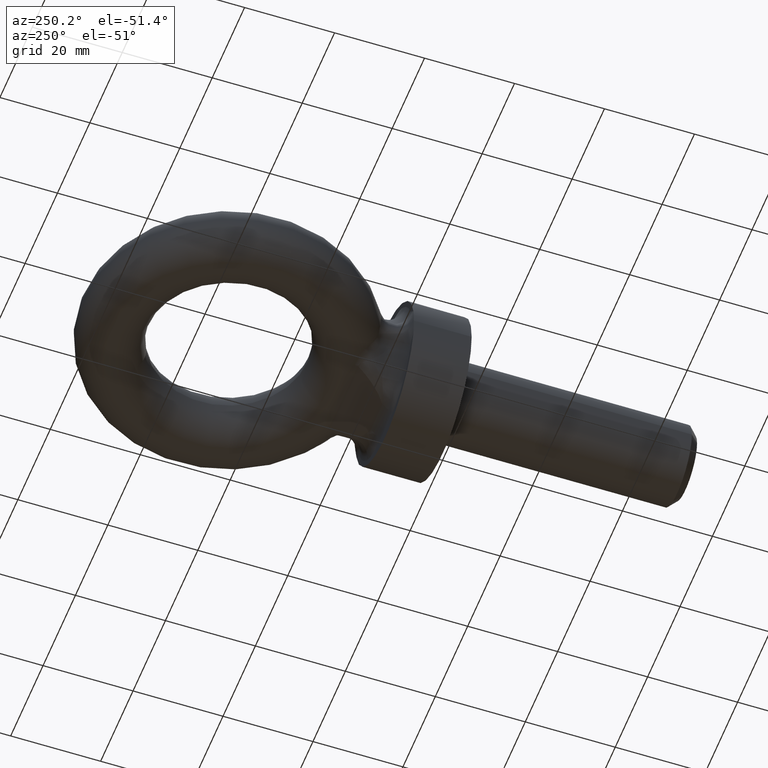
[diagram: clean part render]
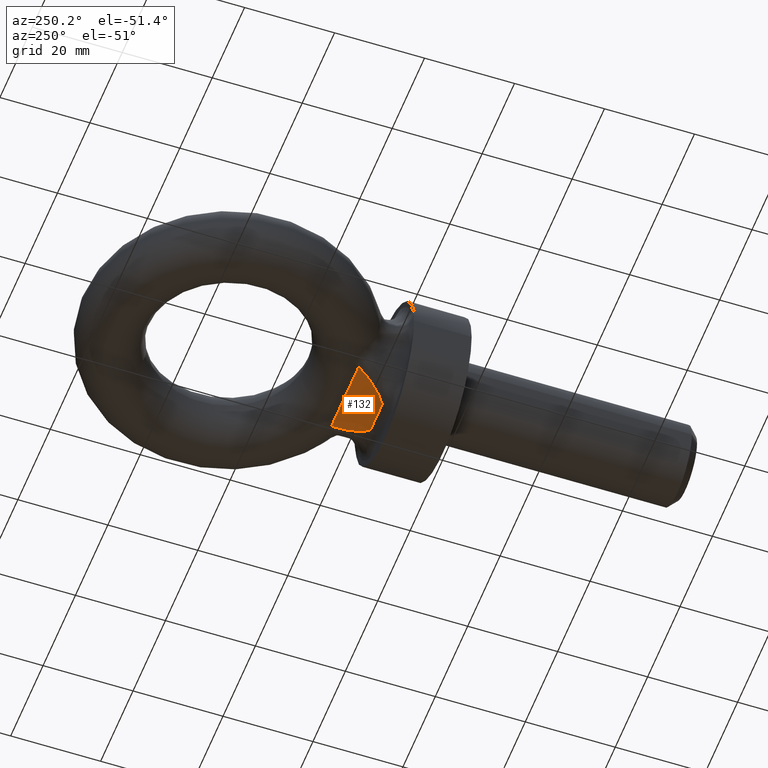
[diagram: same view with one face highlighted and labeled with its STEP entity id]
A machine part, auxiliary view. The second image highlights one B-rep face of the part: STEP entity #132.
In plain terms, the highlighted planar face has unit normal (0, 0.4932, -0.8699).
Its self-contained STEP definition (entity closure, byte-faithful):
#102=ELLIPSE('',#694,20.2741540468166,10.);
#103=ELLIPSE('',#695,20.2741540468166,10.);
#132=ADVANCED_FACE('',(#182),#170,.T.);
#170=PLANE('',#696);
#182=FACE_OUTER_BOUND('',#222,.T.);
#222=EDGE_LOOP('',(#338,#339,#340,#341));
#264=LINE('',#1026,#268);
#268=VECTOR('',#797,1.);
#281=B_SPLINE_CURVE_WITH_KNOTS('',3,(#1030,#1031,#1032,#1033,#1034,#1035),
 .UNSPECIFIED.,.F.,.F.,(4,2,4),(0.,0.5,1.),.UNSPECIFIED.);
#338=ORIENTED_EDGE('',*,*,#568,.T.);
#339=ORIENTED_EDGE('',*,*,#569,.T.);
#340=ORIENTED_EDGE('',*,*,#570,.T.);
#341=ORIENTED_EDGE('',*,*,#571,.T.);
#514=VERTEX_POINT('',#1024);
#515=VERTEX_POINT('',#1025);
#516=VERTEX_POINT('',#1027);
#517=VERTEX_POINT('',#1029);
#568=EDGE_CURVE('',#514,#515,#102,.T.);
#569=EDGE_CURVE('',#515,#516,#264,.T.);
#570=EDGE_CURVE('',#516,#517,#103,.T.);
#571=EDGE_CURVE('',#517,#514,#281,.T.);
#694=AXIS2_PLACEMENT_3D('',#1023,#795,#796);
#695=AXIS2_PLACEMENT_3D('',#1028,#798,#799);
#696=AXIS2_PLACEMENT_3D('',#1036,#800,#801);
#795=DIRECTION('',(0.,0.493238828949817,-0.869893934693313));
#796=DIRECTION('',(-4.12667031236603E-18,0.869893934693313,0.493238828949817));
#797=DIRECTION('',(-1.,-3.58976547520617E-18,-2.0354340323334E-18));
#798=DIRECTION('',(0.,0.493238828949817,-0.869893934693313));
#799=DIRECTION('',(-4.12667031236603E-18,0.869893934693313,0.493238828949817));
#800=DIRECTION('',(0.,0.493238828949817,-0.869893934693313));
#801=DIRECTION('',(0.,0.869893934693313,0.493238828949817));
#1023=CARTESIAN_POINT('',(-2.56489694966177E-17,31.1247430000772,-2.60968180407994));
#1024=CARTESIAN_POINT('',(8.4353361984498,21.652668756512,-7.98044555043134));
#1025=CARTESIAN_POINT('',(3.64304812711425,14.7003543914351,-11.9224794687739));
#1026=CARTESIAN_POINT('',(36.,14.7003543914382,-11.9224794687722));
#1027=CARTESIAN_POINT('',(-3.64304812711871,14.7003543914382,-11.9224794687722));
#1028=CARTESIAN_POINT('',(-2.56489694966177E-17,31.1247430000772,-2.60968180407994));
#1029=CARTESIAN_POINT('',(-8.43663335132715,21.6562627918897,-7.97840769532029));
#1030=CARTESIAN_POINT('',(-8.43663335132715,21.6562627918897,-7.9784076953203));
#1031=CARTESIAN_POINT('',(-5.62465623080324,21.5924161449259,-8.01460940236159));
#1032=CARTESIAN_POINT('',(-2.81262261362831,21.7292655110471,-7.9370144009527));
#1033=CARTESIAN_POINT('',(2.81136871891983,21.7333342968192,-7.93470735747362));
#1034=CARTESIAN_POINT('',(5.62332535027245,21.5967028933862,-8.01217877179135));
#1035=CARTESIAN_POINT('',(8.43533619844976,21.6526687565109,-7.98044555043195));
#1036=CARTESIAN_POINT('',(36.,22.5,-7.5));